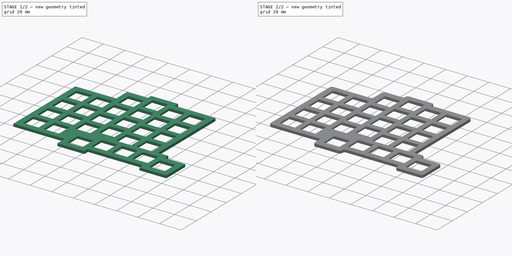
[diagram: build sequence overview — one tinted view per stage of 2, left to right]
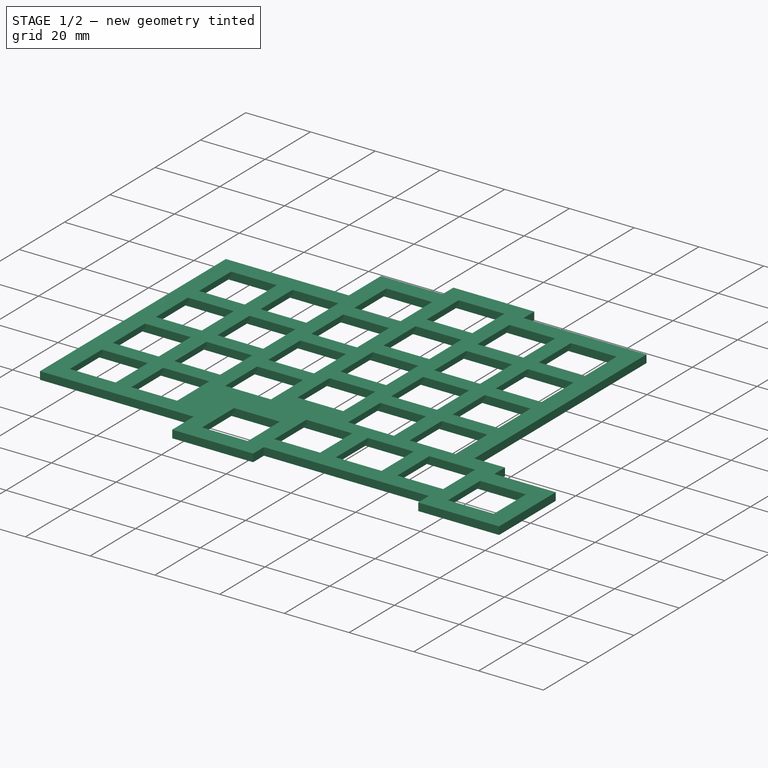
[diagram: stage 1 of 2 — iso view after this stage's code; geometry added in this stage tinted green]
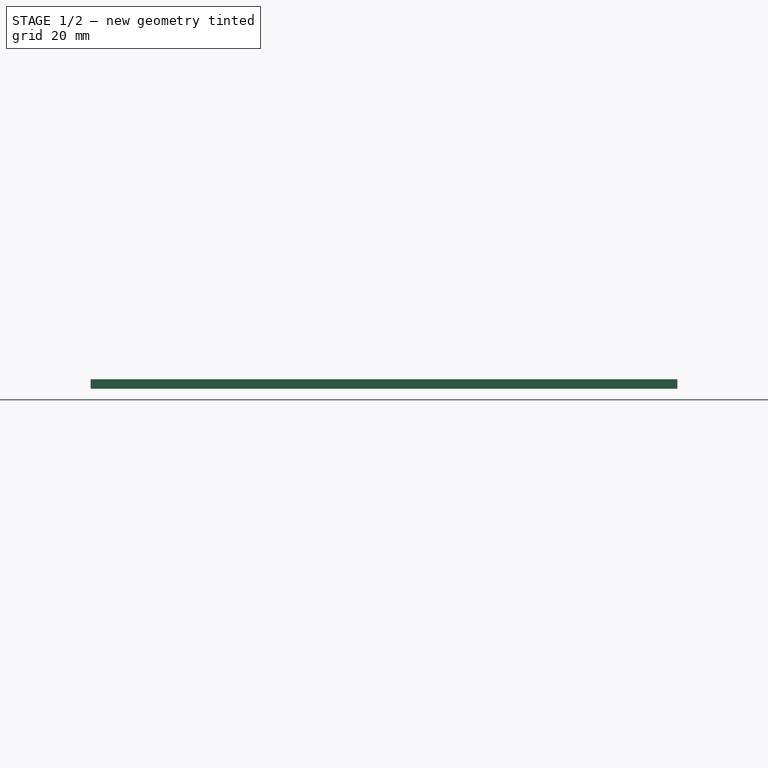
[diagram: stage 1 of 2 — front view after this stage's code; geometry added in this stage tinted green]
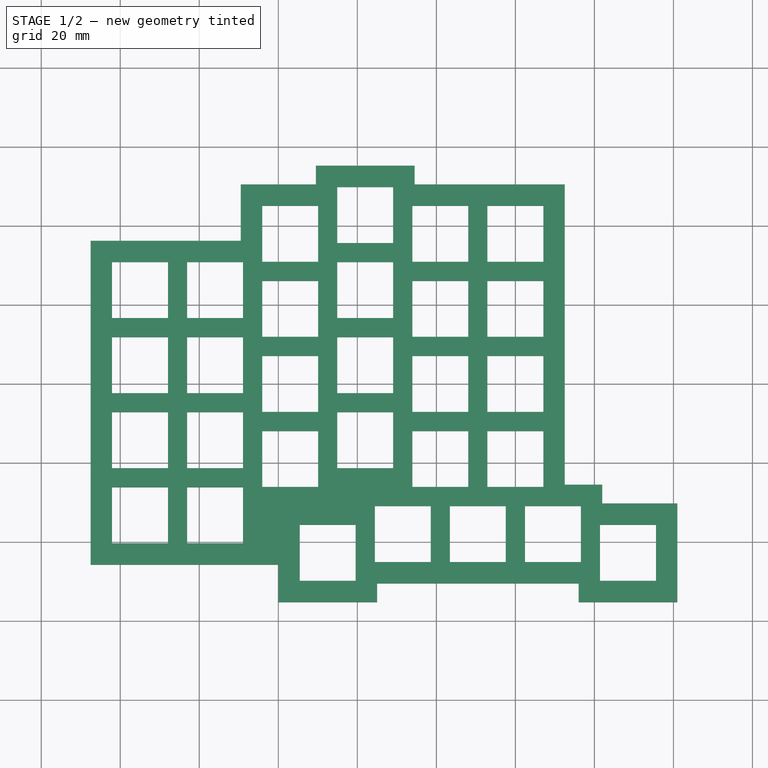
[diagram: stage 1 of 2 — top view after this stage's code; geometry added in this stage tinted green]
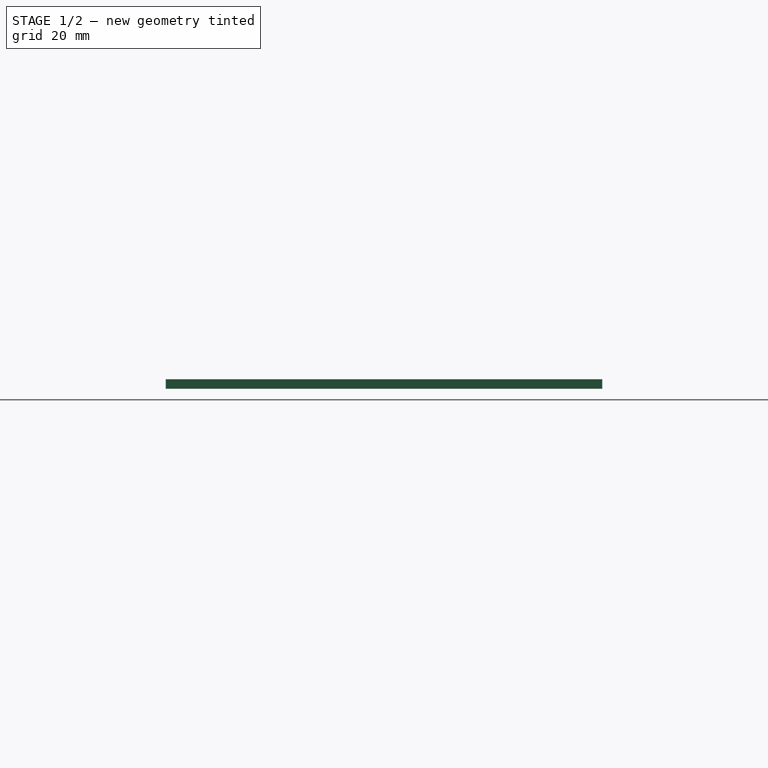
[diagram: stage 1 of 2 — right view after this stage's code; geometry added in this stage tinted green]
FCSTD DOCUMENT  (FreeCAD 0.20R)
Label: plate
License: All rights reserved
LicenseURL: http://en.wikipedia.org/wiki/All_rights_reserved
objects: Sketcher::SketchObject×2, Spreadsheet::Sheet×1, PartDesign::Pad×1, PartDesign::Pocket×1, PartDesign::Fillet×1, PartDesign::Chamfer×1, PartDesign::Body×1
note: 11 computed .brp shape members not serialized (recipe doc carries the construction recipe); baked Part::Feature solids carry a one-line shape summary decoded from their .brp

FEATURE [Sketcher::SketchObject] Sketch
  FullyConstrained = true
  MapMode = 5
  Support = -> [XY_Plane]
  expr: Constraints[10] = Spreadsheet.sw_wi
  expr: Constraints[11] = Spreadsheet.sw_he
  expr: Constraints[23] = Spreadsheet.pl_spacing
  expr: Constraints[343] = Spreadsheet.pl_spacing
  expr: Constraints[344] = Spreadsheet.pl_spacing
  expr: Constraints[345] = Spreadsheet.pl_spacing
  expr: Constraints[346] = Spreadsheet.pl_spacing
  expr: Constraints[347] = Spreadsheet.pl_spacing
  expr: Constraints[348] = Spreadsheet.pl_sp4
  expr: Constraints[349] = Spreadsheet.pl_sp4
  expr: Constraints[350] = Spreadsheet.pl_sp2
  expr: Constraints[351] = Spreadsheet.pl_spacing
  expr: Constraints[352] = Spreadsheet.pl_spacing
  expr: Constraints[353] = Spreadsheet.pl_spacing
  expr: Constraints[354] = Spreadsheet.pl_spacing
  expr: Constraints[355] = Spreadsheet.pl_spacing
  expr: Constraints[356] = Spreadsheet.pl_spacing
  expr: Constraints[357] = Spreadsheet.pl_spacing
  expr: Constraints[358] = Spreadsheet.pl_spacing
  expr: Constraints[359] = Spreadsheet.pl_spacing
  expr: Constraints[360] = Spreadsheet.pl_spacing
  expr: Constraints[361] = Spreadsheet.pl_spacing
  expr: Constraints[362] = Spreadsheet.pl_spacing
  expr: Constraints[363] = Spreadsheet.pl_spacing
  expr: Constraints[364] = Spreadsheet.pl_spacing
  expr: Constraints[365] = Spreadsheet.pl_spacing
  expr: Constraints[366] = Spreadsheet.pl_spacing
  expr: Constraints[367] = Spreadsheet.pl_spacing
  expr: Constraints[368] = Spreadsheet.pl_spacing
  expr: Constraints[369] = Spreadsheet.pl_spacing
  expr: Constraints[370] = Spreadsheet.pl_spacing
  expr: Constraints[373] = Spreadsheet.pl_sp4
  expr: Constraints[375] = Spreadsheet.pl_sp4
  expr: Constraints[37] = Spreadsheet.pl_spacing
  expr: Constraints[416] = Spreadsheet.pl_edge
  expr: Constraints[417] = Spreadsheet.pl_edge
  expr: Constraints[418] = Spreadsheet.pl_edge
  expr: Constraints[419] = Spreadsheet.pl_edge
  expr: Constraints[420] = Spreadsheet.pl_edge
  expr: Constraints[421] = Spreadsheet.pl_edge
  expr: Constraints[422] = Spreadsheet.pl_edge
  expr: Constraints[423] = Spreadsheet.pl_edge
  expr: Constraints[424] = Spreadsheet.pl_edge
  expr: Constraints[425] = Spreadsheet.pl_edge
  expr: Constraints[426] = Spreadsheet.pl_edge
  expr: Constraints[427] = Spreadsheet.pl_edge
  expr: Constraints[428] = Spreadsheet.pl_edge
  expr: Constraints[429] = Spreadsheet.pl_edge
  expr: Constraints[430] = Spreadsheet.pl_edge
  expr: Constraints[431] = Spreadsheet.pl_edge
  expr: Constraints[432] = Spreadsheet.pl_edge
  expr: Constraints[433] = Spreadsheet.pl_edge
  expr: Constraints[434] = Spreadsheet.pl_edge
  expr: Constraints[435] = Spreadsheet.pl_edge
  expr: Constraints[50] = Spreadsheet.pl_spacing
  sketch-geometry (165):
    g0: LineSegment StartX=-7.075 StartY=7.075 StartZ=0 EndX=-7.075 EndY=-7.075 EndZ=0
    g1: LineSegment StartX=-7.075 StartY=-7.075 StartZ=0 EndX=7.075 EndY=-7.075 EndZ=0
    g2: LineSegment StartX=7.075 StartY=-7.075 StartZ=0 EndX=7.075 EndY=7.075 EndZ=0
    g3: LineSegment StartX=7.075 StartY=7.075 StartZ=0 EndX=-7.075 EndY=7.075 EndZ=0
    g4: GeomPoint X=0 Y=0 Z=0
    g5: LineSegment StartX=-7.075 StartY=-11.925 StartZ=0 EndX=-7.075 EndY=-26.075 EndZ=0
    g6: LineSegment StartX=-7.075 StartY=-26.075 StartZ=0 EndX=7.075 EndY=-26.075 EndZ=0
    g7: LineSegment StartX=7.075 StartY=-26.075 StartZ=0 EndX=7.075 EndY=-11.925 EndZ=0
    g8: LineSegment StartX=7.075 StartY=-11.925 StartZ=0 EndX=-7.075 EndY=-11.925 EndZ=0
    g9: GeomPoint X=0 Y=-19 Z=0
    g10: LineSegment StartX=-7.075 StartY=26.075 StartZ=0 EndX=-7.075 EndY=11.925 EndZ=0
    g11: LineSegment StartX=-7.075 StartY=11.925 StartZ=0 EndX=7.075 EndY=11.925 EndZ=0
    g12: LineSegment StartX=7.075 StartY=11.925 StartZ=0 EndX=7.075 EndY=26.075 EndZ=0
    g13: LineSegment StartX=7.075 StartY=26.075 StartZ=0 EndX=-7.075 EndY=26.075 EndZ=0
    g14: GeomPoint X=0 Y=19 Z=0
    g15: LineSegment StartX=-7.075 StartY=45.075 StartZ=0 EndX=-7.075 EndY=30.925 EndZ=0
    g16: LineSegment StartX=-7.075 StartY=30.925 StartZ=0 EndX=7.075 EndY=30.925 EndZ=0
    g17: LineSegment StartX=7.075 StartY=30.925 StartZ=0 EndX=7.075 EndY=45.075 EndZ=0
    g18: LineSegment StartX=7.075 StartY=45.075 StartZ=0 EndX=-7.075 EndY=45.075 EndZ=0
    g19: GeomPoint X=0 Y=38 Z=0
    g20: LineSegment StartX=-26.075 StartY=45.075 StartZ=0 EndX=-26.075 EndY=30.925 EndZ=0
    g21: LineSegment StartX=-26.075 StartY=30.925 StartZ=0 EndX=-11.925 EndY=30.925 EndZ=0
    g22: LineSegment StartX=-11.925 StartY=30.925 StartZ=0 EndX=-11.925 EndY=45.075 EndZ=0
    g23: LineSegment StartX=-11.925 StartY=45.075 StartZ=0 EndX=-26.075 EndY=45.075 EndZ=0
    g24: GeomPoint X=-19 Y=38 Z=0
    g25: LineSegment StartX=-26.075 StartY=26.075 StartZ=0 EndX=-26.075 EndY=11.925 EndZ=0
    g26: LineSegment StartX=-26.075 StartY=11.925 StartZ=0 EndX=-11.925 EndY=11.925 EndZ=0
    g27: LineSegment StartX=-11.925 StartY=11.925 StartZ=0 EndX=-11.925 EndY=26.075 EndZ=0
    g28: LineSegment StartX=-11.925 StartY=26.075 StartZ=0 EndX=-26.075 EndY=26.075 EndZ=0
    g29: GeomPoint X=-19 Y=19 Z=0
    g30: LineSegment StartX=-26.075 StartY=7.075 StartZ=0 EndX=-26.075 EndY=-7.075 EndZ=0
    g31: LineSegment StartX=-26.075 StartY=-7.075 StartZ=0 EndX=-11.925 EndY=-7.075 EndZ=0
    g32: LineSegment StartX=-11.925 StartY=-7.075 StartZ=0 EndX=-11.925 EndY=7.075 EndZ=0
    g33: LineSegment StartX=-11.925 StartY=7.075 StartZ=0 EndX=-26.075 EndY=7.075 EndZ=0
    g34: GeomPoint X=-19 Y=0 Z=0
    g35: LineSegment StartX=-26.075 StartY=-11.925 StartZ=0 EndX=-26.075 EndY=-26.075 EndZ=0
    g36: LineSegment StartX=-26.075 StartY=-26.075 StartZ=0 EndX=-11.925 EndY=-26.075 EndZ=0
    g37: LineSegment StartX=-11.925 StartY=-26.075 StartZ=0 EndX=-11.925 EndY=-11.925 EndZ=0
    g38: LineSegment StartX=-11.925 StartY=-11.925 StartZ=0 EndX=-26.075 EndY=-11.925 EndZ=0
    g39: GeomPoint X=-19 Y=-19 Z=0
    g40: LineSegment StartX=-45.075 StartY=49.825 StartZ=0 EndX=-45.075 EndY=35.675 EndZ=0
    g41: LineSegment StartX=-45.075 StartY=35.675 StartZ=0 EndX=-30.925 EndY=35.675 EndZ=0
    g42: LineSegment StartX=-30.925 StartY=35.675 StartZ=0 EndX=-30.925 EndY=49.825 EndZ=0
    g43: LineSegment StartX=-30.925 StartY=49.825 StartZ=0 EndX=-45.075 EndY=49.825 EndZ=0
    g44: GeomPoint X=-38 Y=42.75 Z=0
    g45: LineSegment StartX=-45.075 StartY=30.825 StartZ=0 EndX=-45.075 EndY=16.675 EndZ=0
    g46: LineSegment StartX=-45.075 StartY=16.675 StartZ=0 EndX=-30.925 EndY=16.675 EndZ=0
    g47: LineSegment StartX=-30.925 StartY=16.675 StartZ=0 EndX=-30.925 EndY=30.825 EndZ=0
    g48: LineSegment StartX=-30.925 StartY=30.825 StartZ=0 EndX=-45.075 EndY=30.825 EndZ=0
    g49: GeomPoint X=-38 Y=23.75 Z=0
    g50: LineSegment StartX=-45.075 StartY=11.825 StartZ=0 EndX=-45.075 EndY=-2.325 EndZ=0
    g51: LineSegment StartX=-45.075 StartY=-2.325 StartZ=0 EndX=-30.925 EndY=-2.325 EndZ=0
    g52: LineSegment StartX=-30.925 StartY=-2.325 StartZ=0 EndX=-30.925 EndY=11.825 EndZ=0
    g53: LineSegment StartX=-30.925 StartY=11.825 StartZ=0 EndX=-45.075 EndY=11.825 EndZ=0
    g54: GeomPoint X=-38 Y=4.75 Z=0
    g55: LineSegment StartX=-45.075 StartY=-7.175 StartZ=0 EndX=-45.075 EndY=-21.325 EndZ=0
    g56: LineSegment StartX=-45.075 StartY=-21.325 StartZ=0 EndX=-30.925 EndY=-21.325 EndZ=0
    g57: LineSegment StartX=-30.925 StartY=-21.325 StartZ=0 EndX=-30.925 EndY=-7.175 EndZ=0
    g58: LineSegment StartX=-30.925 StartY=-7.175 StartZ=0 EndX=-45.075 EndY=-7.175 EndZ=0
    g59: GeomPoint X=-38 Y=-14.25 Z=0
    g60: LineSegment StartX=-64.075 StartY=45.075 StartZ=0 EndX=-64.075 EndY=30.925 EndZ=0
    g61: LineSegment StartX=-64.075 StartY=30.925 StartZ=0 EndX=-49.925 EndY=30.925 EndZ=0
    g62: LineSegment StartX=-49.925 StartY=30.925 StartZ=0 EndX=-49.925 EndY=45.075 EndZ=0
    g63: LineSegment StartX=-49.925 StartY=45.075 StartZ=0 EndX=-64.075 EndY=45.075 EndZ=0
    g64: GeomPoint X=-57 Y=38 Z=0
    g65: LineSegment StartX=-64.075 StartY=26.075 StartZ=0 EndX=-64.075 EndY=11.925 EndZ=0
    g66: LineSegment StartX=-64.075 StartY=11.925 StartZ=0 EndX=-49.925 EndY=11.925 EndZ=0
    g67: LineSegment StartX=-49.925 StartY=11.925 StartZ=0 EndX=-49.925 EndY=26.075 EndZ=0
    g68: LineSegment StartX=-49.925 StartY=26.075 StartZ=0 EndX=-64.075 EndY=26.075 EndZ=0
    g69: GeomPoint X=-57 Y=19 Z=0
    g70: LineSegment StartX=-64.075 StartY=7.075 StartZ=0 EndX=-64.075 EndY=-7.075 EndZ=0
    g71: LineSegment StartX=-64.075 StartY=-7.075 StartZ=0 EndX=-49.925 EndY=-7.075 EndZ=0
    g72: LineSegment StartX=-49.925 StartY=-7.075 StartZ=0 EndX=-49.925 EndY=7.075 EndZ=0
    g73: LineSegment StartX=-49.925 StartY=7.075 StartZ=0 EndX=-64.075 EndY=7.075 EndZ=0
    g74: GeomPoint X=-57 Y=0 Z=0
    g75: LineSegment StartX=-64.075 StartY=-11.925 StartZ=0 EndX=-64.075 EndY=-26.075 EndZ=0
    g76: LineSegment StartX=-64.075 StartY=-26.075 StartZ=0 EndX=-49.925 EndY=-26.075 EndZ=0
    g77: LineSegment StartX=-49.925 StartY=-26.075 StartZ=0 EndX=-49.925 EndY=-11.925 EndZ=0
    g78: LineSegment StartX=-49.925 StartY=-11.925 StartZ=0 EndX=-64.075 EndY=-11.925 EndZ=0
    g79: GeomPoint X=-57 Y=-19 Z=0
    g80: LineSegment StartX=-83.075 StartY=30.825 StartZ=0 EndX=-83.075 EndY=16.675 EndZ=0
    g81: LineSegment StartX=-83.075 StartY=16.675 StartZ=0 EndX=-68.925 EndY=16.675 EndZ=0
    g82: LineSegment StartX=-68.925 StartY=16.675 StartZ=0 EndX=-68.925 EndY=30.825 EndZ=0
    g83: LineSegment StartX=-68.925 StartY=30.825 StartZ=0 EndX=-83.075 EndY=30.825 EndZ=0
    g84: GeomPoint X=-76 Y=23.75 Z=0
    g85: LineSegment StartX=-102.075 StartY=30.825 StartZ=0 EndX=-102.075 EndY=16.675 EndZ=0
    g86: LineSegment StartX=-102.075 StartY=16.675 StartZ=0 EndX=-87.925 EndY=16.675 EndZ=0
    g87: LineSegment StartX=-87.925 StartY=16.675 StartZ=0 EndX=-87.925 EndY=30.825 EndZ=0
    g88: LineSegment StartX=-87.925 StartY=30.825 StartZ=0 EndX=-102.075 EndY=30.825 EndZ=0
    g89: GeomPoint X=-95 Y=23.75 Z=0
    g90: LineSegment StartX=-83.075 StartY=11.825 StartZ=0 EndX=-83.075 EndY=-2.325 EndZ=0
    g91: LineSegment StartX=-83.075 StartY=-2.325 StartZ=0 EndX=-68.925 EndY=-2.325 EndZ=0
    g92: LineSegment StartX=-68.925 StartY=-2.325 StartZ=0 EndX=-68.925 EndY=11.825 EndZ=0
    g93: LineSegment StartX=-68.925 StartY=11.825 StartZ=0 EndX=-83.075 EndY=11.825 EndZ=0
    g94: GeomPoint X=-76 Y=4.75 Z=0
    g95: LineSegment StartX=-83.075 StartY=-7.175 StartZ=0 EndX=-83.075 EndY=-21.325 EndZ=0
    g96: LineSegment StartX=-83.075 StartY=-21.325 StartZ=0 EndX=-68.925 EndY=-21.325 EndZ=0
    g97: LineSegment StartX=-68.925 StartY=-21.325 StartZ=0 EndX=-68.925 EndY=-7.175 EndZ=0
    g98: LineSegment StartX=-68.925 StartY=-7.175 StartZ=0 EndX=-83.075 EndY=-7.175 EndZ=0
    g99: GeomPoint X=-76 Y=-14.25 Z=0
    g100: LineSegment StartX=-83.075 StartY=-26.175 StartZ=0 EndX=-83.075 EndY=-40.325 EndZ=0
    g101: LineSegment StartX=-83.075 StartY=-40.325 StartZ=0 EndX=-68.925 EndY=-40.325 EndZ=0
    g102: LineSegment StartX=-68.925 StartY=-40.325 StartZ=0 EndX=-68.925 EndY=-26.175 EndZ=0
    g103: LineSegment StartX=-68.925 StartY=-26.175 StartZ=0 EndX=-83.075 EndY=-26.175 EndZ=0
    g104: GeomPoint X=-76 Y=-33.25 Z=0
    g105: LineSegment StartX=-102.075 StartY=11.825 StartZ=0 EndX=-102.075 EndY=-2.325 EndZ=0
    g106: LineSegment StartX=-102.075 StartY=-2.325 StartZ=0 EndX=-87.925 EndY=-2.325 EndZ=0
    g107: LineSegment StartX=-87.925 StartY=-2.325 StartZ=0 EndX=-87.925 EndY=11.825 EndZ=0
    g108: LineSegment StartX=-87.925 StartY=11.825 StartZ=0 EndX=-102.075 EndY=11.825 EndZ=0
    g109: GeomPoint X=-95 Y=4.75 Z=0
    g110: LineSegment StartX=-102.075 StartY=-7.175 StartZ=0 EndX=-102.075 EndY=-21.325 EndZ=0
    g111: LineSegment StartX=-102.075 StartY=-21.325 StartZ=0 EndX=-87.925 EndY=-21.325 EndZ=0
    g112: LineSegment StartX=-87.925 StartY=-21.325 StartZ=0 EndX=-87.925 EndY=-7.175 EndZ=0
    g113: LineSegment StartX=-87.925 StartY=-7.175 StartZ=0 EndX=-102.075 EndY=-7.175 EndZ=0
    g114: GeomPoint X=-95 Y=-14.25 Z=0
    g115: LineSegment StartX=-102.075 StartY=-26.175 StartZ=0 EndX=-102.075 EndY=-40.325 EndZ=0
    g116: LineSegment StartX=-102.075 StartY=-40.325 StartZ=0 EndX=-87.925 EndY=-40.325 EndZ=0
    g117: LineSegment StartX=-87.925 StartY=-40.325 StartZ=0 EndX=-87.925 EndY=-26.175 EndZ=0
    g118: LineSegment StartX=-87.925 StartY=-26.175 StartZ=0 EndX=-102.075 EndY=-26.175 EndZ=0
    g119: GeomPoint X=-95 Y=-33.25 Z=0
    g120: LineSegment StartX=-16.575 StartY=-30.925 StartZ=0 EndX=-16.575 EndY=-45.075 EndZ=0
    g121: LineSegment StartX=-16.575 StartY=-45.075 StartZ=0 EndX=-2.425 EndY=-45.075 EndZ=0
    g122: LineSegment StartX=-2.425 StartY=-45.075 StartZ=0 EndX=-2.425 EndY=-30.925 EndZ=0
    g123: LineSegment StartX=-2.425 StartY=-30.925 StartZ=0 EndX=-16.575 EndY=-30.925 EndZ=0
    g124: GeomPoint X=-9.5 Y=-38 Z=0
    g125: LineSegment StartX=2.425 StartY=-30.925 StartZ=0 EndX=2.425 EndY=-45.075 EndZ=0
    g126: LineSegment StartX=2.425 StartY=-45.075 StartZ=0 EndX=16.575 EndY=-45.075 EndZ=0
    g127: LineSegment StartX=16.575 StartY=-45.075 StartZ=0 EndX=16.575 EndY=-30.925 EndZ=0
    g128: LineSegment StartX=16.575 StartY=-30.925 StartZ=0 EndX=2.425 EndY=-30.925 EndZ=0
    g129: GeomPoint X=9.5 Y=-38 Z=0
    g130: LineSegment StartX=-35.575 StartY=-30.925 StartZ=0 EndX=-35.575 EndY=-45.075 EndZ=0
    g131: LineSegment StartX=-35.575 StartY=-45.075 StartZ=0 EndX=-21.425 EndY=-45.075 EndZ=0
    g132: LineSegment StartX=-21.425 StartY=-45.075 StartZ=0 EndX=-21.425 EndY=-30.925 EndZ=0
    g133: LineSegment StartX=-21.425 StartY=-30.925 StartZ=0 EndX=-35.575 EndY=-30.925 EndZ=0
    g134: GeomPoint X=-28.5 Y=-38 Z=0
    g135: LineSegment StartX=21.425 StartY=-35.675 StartZ=0 EndX=21.425 EndY=-49.825 EndZ=0
    g136: LineSegment StartX=21.425 StartY=-49.825 StartZ=0 EndX=35.575 EndY=-49.825 EndZ=0
    g137: LineSegment StartX=35.575 StartY=-49.825 StartZ=0 EndX=35.575 EndY=-35.675 EndZ=0
    g138: LineSegment StartX=35.575 StartY=-35.675 StartZ=0 EndX=21.425 EndY=-35.675 EndZ=0
    g139: GeomPoint X=28.5 Y=-42.75 Z=0
    g140: LineSegment StartX=-54.575 StartY=-35.675 StartZ=0 EndX=-54.575 EndY=-49.825 EndZ=0
    g141: LineSegment StartX=-54.575 StartY=-49.825 StartZ=0 EndX=-40.425 EndY=-49.825 EndZ=0
    g142: LineSegment StartX=-40.425 StartY=-49.825 StartZ=0 EndX=-40.425 EndY=-35.675 EndZ=0
    g143: LineSegment StartX=-40.425 StartY=-35.675 StartZ=0 EndX=-54.575 EndY=-35.675 EndZ=0
    g144: GeomPoint X=-47.5 Y=-42.75 Z=0
    g145: LineSegment StartX=12.5 StartY=50.5 StartZ=0 EndX=12.5 EndY=-25.5 EndZ=0
    g146: LineSegment StartX=12.5 StartY=-25.5 StartZ=0 EndX=22 EndY=-25.5 EndZ=0
    g147: LineSegment StartX=22 StartY=-25.5 StartZ=0 EndX=22 EndY=-30.25 EndZ=0
    g148: LineSegment StartX=22 StartY=-30.25 StartZ=0 EndX=41 EndY=-30.25 EndZ=0
    g149: LineSegment StartX=41 StartY=-30.25 StartZ=0 EndX=41 EndY=-55.25 EndZ=0
    g150: LineSegment StartX=41 StartY=-55.25 StartZ=0 EndX=16 EndY=-55.25 EndZ=0
    g151: LineSegment StartX=16 StartY=-55.25 StartZ=0 EndX=16 EndY=-50.5 EndZ=0
    g152: LineSegment StartX=16 StartY=-50.5 StartZ=0 EndX=-35 EndY=-50.5 EndZ=0
    g153: LineSegment StartX=-35 StartY=-50.5 StartZ=0 EndX=-35 EndY=-55.25 EndZ=0
    g154: LineSegment StartX=-35 StartY=-55.25 StartZ=0 EndX=-60 EndY=-55.25 EndZ=0
    g155: LineSegment StartX=-60 StartY=-55.25 StartZ=0 EndX=-60 EndY=-45.75 EndZ=0
    g156: LineSegment StartX=-60 StartY=-45.75 StartZ=0 EndX=-107.5 EndY=-45.75 EndZ=0
    g157: LineSegment StartX=-107.5 StartY=-45.75 StartZ=0 EndX=-107.5 EndY=36.25 EndZ=0
    g158: LineSegment StartX=-107.5 StartY=36.25 StartZ=0 EndX=-69.5 EndY=36.25 EndZ=0
    g159: LineSegment StartX=-69.5 StartY=36.25 StartZ=0 EndX=-69.5 EndY=50.5 EndZ=0
    g160: LineSegment StartX=-69.5 StartY=50.5 StartZ=0 EndX=-50.5 EndY=50.5 EndZ=0
    g161: LineSegment StartX=-50.5 StartY=50.5 StartZ=0 EndX=-50.5 EndY=55.25 EndZ=0
    g162: LineSegment StartX=-50.5 StartY=55.25 StartZ=0 EndX=-25.5 EndY=55.25 EndZ=0
    g163: LineSegment StartX=-25.5 StartY=55.25 StartZ=0 EndX=-25.5 EndY=50.5 EndZ=0
    g164: LineSegment StartX=-25.5 StartY=50.5 StartZ=0 EndX=12.5 EndY=50.5 EndZ=0
  constraints (436):
    c: Coincident(g0,g1)
    c: Coincident(g1,g2)
    c: Coincident(g2,g3)
    c: Coincident(g3,g0)
    c: Horizontal(g1)
    c: Horizontal(g3)
    c: Vertical(g0)
    c: Vertical(g2)
    c: Symmetric(g1,g0,g4)
    c: Coincident(g4,g-1)
    c: DistanceX(g3,g3) = 14.15
    c: DistanceY(g0,g0) = 14.15
    c: Coincident(g5,g6)
    c: Coincident(g6,g7)
    c: Coincident(g7,g8)
    c: Coincident(g8,g5)
    c: Horizontal(g6)
    c: Horizontal(g8)
    c: Vertical(g5)
    c: Vertical(g7)
    c: Symmetric(g6,g5,g9)
    c: Equal(g3,g8) = 14.15
    c: Equal(g0,g5) = 14.15
    c: DistanceY(g9,g4) = 19
    c: Vertical(g9,g4)
    c: Coincident(g10,g11)
    c: Coincident(g11,g12)
    c: Coincident(g12,g13)
    c: Coincident(g13,g10)
    c: Horizontal(g11)
    c: Horizontal(g13)
    c: Vertical(g10)
    c: Vertical(g12)
    c: Symmetric(g11,g10,g14)
    c: Equal(g3,g13) = 14.15
    c: Equal(g0,g10) = 14.15
    c: Vertical(g4,g14)
    c: DistanceY(g4,g14) = 19
    c: Coincident(g15,g16)
    c: Coincident(g16,g17)
    c: Coincident(g17,g18)
    c: Coincident(g18,g15)
    c: Horizontal(g16)
    c: Horizontal(g18)
    c: Vertical(g15)
    c: Vertical(g17)
    c: Symmetric(g16,g15,g19)
    c: Equal(g3,g18) = 14.15
    c: Equal(g0,g15) = 14.15
    c: Vertical(g19,g4)
    c: DistanceY(g14,g19) = 19
    c: Coincident(g20,g21)
    c: Coincident(g21,g22)
    c: Coincident(g22,g23)
    c: Coincident(g23,g20)
    c: Horizontal(g21)
    c: Horizontal(g23)
    c: Vertical(g20)
    c: Vertical(g22)
    c: Symmetric(g21,g20,g24)
    c: Equal(g3,g23) = 14.15
    c: Equal(g0,g20) = 14.15
    c: Coincident(g25,g26)
    c: Coincident(g26,g27)
    c: Coincident(g27,g28)
    c: Coincident(g28,g25)
    c: Horizontal(g26)
    c: Horizontal(g28)
    c: Vertical(g25)
    c: Vertical(g27)
    c: Symmetric(g26,g25,g29)
    c: Equal(g3,g28) = 14.15
    c: Equal(g0,g25) = 14.15
    c: Coincident(g30,g31)
    c: Coincident(g31,g32)
    c: Coincident(g32,g33)
    c: Coincident(g33,g30)
    c: Horizontal(g31)
    c: Horizontal(g33)
    c: Vertical(g30)
    c: Vertical(g32)
    c: Symmetric(g31,g30,g34)
    c: Equal(g3,g33) = 14.15
    c: Equal(g0,g30) = 14.15
    c: Coincident(g35,g36)
    c: Coincident(g36,g37)
    c: Coincident(g37,g38)
    c: Coincident(g38,g35)
    c: Horizontal(g36)
    c: Horizontal(g38)
    c: Vertical(g35)
    c: Vertical(g37)
    c: Symmetric(g36,g35,g39)
    c: Equal(g3,g38) = 14.15
    c: Equal(g0,g35) = 14.15
    c: Coincident(g40,g41)
    c: Coincident(g41,g42)
    c: Coincident(g42,g43)
    c: Coincident(g43,g40)
    c: Horizontal(g41)
    c: Horizontal(g43)
    c: Vertical(g40)
    c: Vertical(g42)
    c: Symmetric(g41,g40,g44)
    c: Equal(g3,g43) = 14.15
    c: Equal(g0,g40) = 14.15
    c: Coincident(g45,g46)
    c: Coincident(g46,g47)
    c: Coincident(g47,g48)
    c: Coincident(g48,g45)
    c: Horizontal(g46)
    c: Horizontal(g48)
    c: Vertical(g45)
    c: Vertical(g47)
    c: Symmetric(g46,g45,g49)
    c: Equal(g3,g48) = 14.15
    c: Equal(g0,g45) = 14.15
    c: Coincident(g50,g51)
    c: Coincident(g51,g52)
    c: Coincident(g52,g53)
    c: Coincident(g53,g50)
    c: Horizontal(g51)
    c: Horizontal(g53)
    c: Vertical(g50)
    c: Vertical(g52)
    c: Symmetric(g51,g50,g54)
    c: Equal(g3,g53) = 14.15
    c: Equal(g0,g50) = 14.15
    c: Coincident(g55,g56)
    c: Coincident(g56,g57)
    c: Coincident(g57,g58)
    c: Coincident(g58,g55)
    c: Horizontal(g56)
    c: Horizontal(g58)
    c: Vertical(g55)
    c: Vertical(g57)
    c: Symmetric(g56,g55,g59)
    c: Equal(g3,g58) = 14.15
    c: Equal(g0,g55) = 14.15
    c: Coincident(g60,g61)
    c: Coincident(g61,g62)
    c: Coincident(g62,g63)
    c: Coincident(g63,g60)
    c: Horizontal(g61)
    c: Horizontal(g63)
    c: Vertical(g60)
    c: Vertical(g62)
    c: Symmetric(g61,g60,g64)
    c: Equal(g3,g63) = 14.15
    c: Equal(g0,g60) = 14.15
    c: Coincident(g65,g66)
    c: Coincident(g66,g67)
    c: Coincident(g67,g68)
    c: Coincident(g68,g65)
    c: Horizontal(g66)
    c: Horizontal(g68)
    c: Vertical(g65)
    c: Vertical(g67)
    c: Symmetric(g66,g65,g69)
    c: Equal(g3,g68) = 14.15
    c: Equal(g0,g65) = 14.15
    c: Coincident(g70,g71)
    c: Coincident(g71,g72)
    c: Coincident(g72,g73)
    c: Coincident(g73,g70)
    c: Horizontal(g71)
    c: Horizontal(g73)
    c: Vertical(g70)
    c: Vertical(g72)
    c: Symmetric(g71,g70,g74)
    c: Equal(g3,g73) = 14.15
    c: Equal(g0,g70) = 14.15
    c: Coincident(g75,g76)
    c: Coincident(g76,g77)
    c: Coincident(g77,g78)
    c: Coincident(g78,g75)
    c: Horizontal(g76)
    c: Horizontal(g78)
    c: Vertical(g75)
    c: Vertical(g77)
    c: Symmetric(g76,g75,g79)
    c: Equal(g3,g78) = 14.15
    c: Equal(g0,g75) = 14.15
    c: Coincident(g80,g81)
    c: Coincident(g81,g82)
    c: Coincident(g82,g83)
    c: Coincident(g83,g80)
    c: Horizontal(g81)
    c: Horizontal(g83)
    c: Vertical(g80)
    c: Vertical(g82)
    c: Symmetric(g81,g80,g84)
    c: Equal(g3,g83) = 14.15
    c: Equal(g0,g80) = 14.15
    c: Coincident(g85,g86)
    c: Coincident(g86,g87)
    c: Coincident(g87,g88)
    c: Coincident(g88,g85)
    c: Horizontal(g86)
    c: Horizontal(g88)
    c: Vertical(g85)
    c: Vertical(g87)
    c: Symmetric(g86,g85,g89)
    c: Equal(g3,g88) = 14.15
    c: Equal(g0,g85) = 14.15
    c: Coincident(g90,g91)
    c: Coincident(g91,g92)
    c: Coincident(g92,g93)
    c: Coincident(g93,g90)
    c: Horizontal(g91)
    c: Horizontal(g93)
    c: Vertical(g90)
    c: Vertical(g92)
    c: Symmetric(g91,g90,g94)
    c: Equal(g3,g93) = 14.15
    c: Equal(g0,g90) = 14.15
    c: Coincident(g95,g96)
    c: Coincident(g96,g97)
    c: Coincident(g97,g98)
    c: Coincident(g98,g95)
    c: Horizontal(g96)
    c: Horizontal(g98)
    c: Vertical(g95)
    c: Vertical(g97)
    c: Symmetric(g96,g95,g99)
    c: Equal(g3,g98) = 14.15
    c: Equal(g0,g95) = 14.15
    c: Coincident(g100,g101)
    c: Coincident(g101,g102)
    c: Coincident(g102,g103)
    c: Coincident(g103,g100)
    c: Horizontal(g101)
    c: Horizontal(g103)
    c: Vertical(g100)
    c: Vertical(g102)
    c: Symmetric(g101,g100,g104)
    c: Equal(g3,g103) = 14.15
    c: Equal(g0,g100) = 14.15
    c: Coincident(g105,g106)
    c: Coincident(g106,g107)
    c: Coincident(g107,g108)
    c: Coincident(g108,g105)
    c: Horizontal(g106)
    c: Horizontal(g108)
    c: Vertical(g105)
    c: Vertical(g107)
    c: Symmetric(g106,g105,g109)
    c: Equal(g3,g108) = 14.15
    c: Equal(g0,g105) = 14.15
    c: Coincident(g110,g111)
    c: Coincident(g111,g112)
    c: Coincident(g112,g113)
    c: Coincident(g113,g110)
    c: Horizontal(g111)
    c: Horizontal(g113)
    c: Vertical(g110)
    c: Vertical(g112)
    c: Symmetric(g111,g110,g114)
    c: Equal(g3,g113) = 14.15
    c: Equal(g0,g110) = 14.15
    c: Coincident(g115,g116)
    c: Coincident(g116,g117)
    c: Coincident(g117,g118)
    c: Coincident(g118,g115)
    c: Horizontal(g116)
    c: Horizontal(g118)
    c: Vertical(g115)
    c: Vertical(g117)
    c: Symmetric(g116,g115,g119)
    c: Equal(g3,g118) = 14.15
    c: Equal(g0,g115) = 14.15
    c: Coincident(g120,g121)
    c: Coincident(g121,g122)
    c: Coincident(g122,g123)
    c: Coincident(g123,g120)
    c: Horizontal(g121)
    c: Horizontal(g123)
    c: Vertical(g120)
    c: Vertical(g122)
    c: Symmetric(g121,g120,g124)
    c: Equal(g3,g123) = 14.15
    c: Equal(g0,g120) = 14.15
    c: Coincident(g125,g126)
    c: Coincident(g126,g127)
    c: Coincident(g127,g128)
    c: Coincident(g128,g125)
    c: Horizontal(g126)
    c: Horizontal(g128)
    c: Vertical(g125)
    c: Vertical(g127)
    c: Symmetric(g126,g125,g129)
    c: Equal(g3,g128) = 14.15
    c: Equal(g0,g125) = 14.15
    c: Coincident(g130,g131)
    c: Coincident(g131,g132)
    c: Coincident(g132,g133)
    c: Coincident(g133,g130)
    c: Horizontal(g131)
    c: Horizontal(g133)
    c: Vertical(g130)
    c: Vertical(g132)
    c: Symmetric(g131,g130,g134)
    c: Equal(g3,g133) = 14.15
    c: Equal(g0,g130) = 14.15
    c: Coincident(g135,g136)
    c: Coincident(g136,g137)
    c: Coincident(g137,g138)
    c: Coincident(g138,g135)
    c: Horizontal(g136)
    c: Horizontal(g138)
    c: Vertical(g135)
    c: Vertical(g137)
    c: Symmetric(g136,g135,g139)
    c: Equal(g3,g138) = 14.15
    c: Equal(g0,g135) = 14.15
    c: Coincident(g140,g141)
    c: Coincident(g141,g142)
    c: Coincident(g142,g143)
    c: Coincident(g143,g140)
    c: Horizontal(g141)
    c: Horizontal(g143)
    c: Vertical(g140)
    c: Vertical(g142)
    c: Symmetric(g141,g140,g144)
    c: Equal(g3,g143) = 14.15
    c: Equal(g0,g140) = 14.15
    c: Vertical(g39,g34)
    c: Vertical(g34,g29)
    c: Vertical(g29,g24)
    c: Vertical(g59,g54)
    c: Vertical(g54,g49)
    c: Vertical(g49,g44)
    c: Vertical(g79,g74)
    c: Vertical(g74,g69)
    c: Vertical(g69,g64)
    c: Vertical(g104,g99)
    c: Vertical(g99,g94)
    c: Vertical(g94,g84)
    c: Vertical(g119,g114)
    c: Vertical(g114,g109)
    c: Vertical(g109,g89)
    c: Horizontal(g134,g124)
    c: Horizontal(g124,g129)
    c: DistanceY(g129,g9) = 19
    c: DistanceX(g129,g139) = 19
    c: DistanceX(g124,g129) = 19
    c: DistanceX(g134,g124) = 19
    c: DistanceX(g144,g134) = 19
    c: DistanceY(g139,g129) = 4.75
    c: DistanceY(g144,g134) = 4.75
    c: DistanceX(g9,g129) = 9.5
    c: DistanceY(g39,g34) = 19
    c: DistanceY(g34,g29) = 19
    c: DistanceY(g29,g24) = 19
    c: DistanceY(g59,g54) = 19
    c: DistanceY(g54,g49) = 19
    c: DistanceY(g49,g44) = 19
    c: DistanceY(g79,g74) = 19
    c: DistanceY(g74,g69) = 19
    c: DistanceY(g69,g64) = 19
    c: DistanceY(g104,g99) = 19
    c: DistanceY(g99,g94) = 19
    c: DistanceY(g94,g84) = 19
    c: DistanceY(g119,g114) = 19
    c: DistanceY(g114,g109) = 19
    c: DistanceY(g109,g89) = 19
    c: DistanceX(g34,g4) = 19
    c: DistanceX(g54,g34) = 19
    c: DistanceX(g74,g54) = 19
    c: DistanceX(g99,g74) = 19
    c: DistanceX(g114,g99) = 19
    c: Horizontal(g34,g4)
    c: Horizontal(g74,g34)
    c: DistanceY(g34,g54) = 4.75
    c: Horizontal(g114,g99)
    c: DistanceY(g74,g94) = 4.75
    c: Vertical(g145)
    c: Coincident(g145,g146)
    c: Horizontal(g146)
    c: Coincident(g146,g147)
    c: Vertical(g147)
    c: Coincident(g147,g148)
    c: Horizontal(g148)
    c: Coincident(g148,g149)
    c: Vertical(g149)
    c: Coincident(g149,g150)
    c: Horizontal(g150)
    c: Coincident(g150,g151)
    c: Vertical(g151)
    c: Coincident(g151,g152)
    c: Horizontal(g152)
    c: Coincident(g152,g153)
    c: Vertical(g153)
    c: Coincident(g153,g154)
    c: Horizontal(g154)
    c: Coincident(g154,g155)
    c: Vertical(g155)
    c: Coincident(g155,g156)
    c: Horizontal(g156)
    c: Coincident(g156,g157)
    c: Vertical(g157)
    c: Coincident(g157,g158)
    c: Horizontal(g158)
    c: Coincident(g158,g159)
    c: Vertical(g159)
    c: Coincident(g159,g160)
    c: Horizontal(g160)
    c: Coincident(g160,g161)
    c: Vertical(g161)
    c: Coincident(g161,g162)
    c: Horizontal(g162)
    c: Coincident(g162,g163)
    c: Vertical(g163)
    c: Coincident(g163,g164)
    c: Coincident(g164,g145)
    c: Horizontal(g164)
    c: DistanceX(g19,g145) = 12.5
    c: DistanceX(g44,g162) = 12.5
    c: DistanceX(g161,g44) = 12.5
    c: DistanceX(g159,g64) = 12.5
    c: DistanceX(g157,g89) = 12.5
    c: DistanceX(g154,g144) = 12.5
    c: DistanceX(g144,g153) = 12.5
    c: DistanceX(g150,g139) = 12.5
    c: DistanceX(g139,g149) = 12.5
    c: DistanceX(g129,g146) = 12.5
    c: DistanceY(g19,g145) = 12.5
    c: DistanceY(g44,g162) = 12.5
    c: DistanceY(g64,g159) = 12.5
    c: DistanceY(g89,g157) = 12.5
    c: DistanceY(g156,g119) = 12.5
    c: DistanceY(g154,g144) = 12.5
    c: DistanceY(g152,g134) = 12.5
    c: DistanceY(g149,g139) = 12.5
    c: DistanceY(g139,g148) = 12.5
    c: DistanceY(g129,g146) = 12.5
FEATURE [Spreadsheet::Sheet] Spreadsheet
  cells = B2=Switch Opening; B3=width; C3(sw_wi)=14.15; B4=height; C4(sw_he)=14.15; B5=thickness; C5=1.2; D5(sw_th)==C14 - C5; B6=clearance; C6=0.8; D6(sw_cl)==C3 + C6 * 2; B13=Plate; B14=thickness; C14(pl_thickness)=2.4; B15=spacing; C15(pl_spacing)=19; B16=spacing/2; C16(pl_sp2)==C15 / 2; B17=spcing/4; C17(pl_sp4)==C15 / 4; B18=edge offset; C18=4; D18(pl_edge)==C15 / 2 + C18 - 1
FEATURE [PartDesign::Pad] Pad
  Direction = (0,0,1)
  Length = 2.4
  Length2 = 10
  Profile = -> Sketch
  ReferenceAxis = -> Sketch [N_Axis]
  Type = 0
  expr: Length = Spreadsheet.pl_thickness
FEATURE [Sketcher::SketchObject] Sketch001
  FullyConstrained = true
  MapMode = 5
  Support = -> [XY_Plane]
  expr: Constraints[10] = Spreadsheet.sw_cl
  expr: Constraints[11] = Spreadsheet.sw_he
  expr: Constraints[23] = Spreadsheet.pl_spacing
  expr: Constraints[343] = Spreadsheet.pl_spacing
  expr: Constraints[344] = Spreadsheet.pl_spacing
  expr: Constraints[345] = Spreadsheet.pl_spacing
  expr: Constraints[346] = Spreadsheet.pl_spacing
  expr: Constraints[347] = Spreadsheet.pl_spacing
  expr: Constraints[348] = Spreadsheet.pl_sp4
  expr: Constraints[349] = Spreadsheet.pl_sp4
  expr: Constraints[350] = Spreadsheet.pl_sp2
  expr: Constraints[351] = Spreadsheet.pl_spacing
  expr: Constraints[352] = Spreadsheet.pl_spacing
  expr: Constraints[353] = Spreadsheet.pl_spacing
  expr: Constraints[354] = Spreadsheet.pl_spacing
  expr: Constraints[355] = Spreadsheet.pl_spacing
  expr: Constraints[356] = Spreadsheet.pl_spacing
  expr: Constraints[357] = Spreadsheet.pl_spacing
  expr: Constraints[358] = Spreadsheet.pl_spacing
  expr: Constraints[359] = Spreadsheet.pl_spacing
  expr: Constraints[360] = Spreadsheet.pl_spacing
  expr: Constraints[361] = Spreadsheet.pl_spacing
  expr: Constraints[362] = Spreadsheet.pl_spacing
  expr: Constraints[363] = Spreadsheet.pl_spacing
  expr: Constraints[364] = Spreadsheet.pl_spacing
  expr: Constraints[365] = Spreadsheet.pl_spacing
  expr: Constraints[366] = Spreadsheet.pl_spacing
  expr: Constraints[367] = Spreadsheet.pl_spacing
  expr: Constraints[368] = Spreadsheet.pl_spacing
  expr: Constraints[369] = Spreadsheet.pl_spacing
  expr: Constraints[370] = Spreadsheet.pl_spacing
  expr: Constraints[373] = Spreadsheet.pl_sp4
  expr: Constraints[375] = Spreadsheet.pl_sp4
  expr: Constraints[37] = Spreadsheet.pl_spacing
  expr: Constraints[50] = Spreadsheet.pl_spacing
  sketch-geometry (145):
    g0: LineSegment StartX=-7.875 StartY=7.075 StartZ=0 EndX=-7.875 EndY=-7.075 EndZ=0
    g1: LineSegment StartX=-7.875 StartY=-7.075 StartZ=0 EndX=7.875 EndY=-7.075 EndZ=0
    g2: LineSegment StartX=7.875 StartY=-7.075 StartZ=0 EndX=7.875 EndY=7.075 EndZ=0
    g3: LineSegment StartX=7.875 StartY=7.075 StartZ=0 EndX=-7.875 EndY=7.075 EndZ=0
    g4: GeomPoint X=1e-16 Y=0 Z=0
    g5: LineSegment StartX=-7.875 StartY=-11.925 StartZ=0 EndX=-7.875 EndY=-26.075 EndZ=0
    g6: LineSegment StartX=-7.875 StartY=-26.075 StartZ=0 EndX=7.875 EndY=-26.075 EndZ=0
    g7: LineSegment StartX=7.875 StartY=-26.075 StartZ=0 EndX=7.875 EndY=-11.925 EndZ=0
    g8: LineSegment StartX=7.875 StartY=-11.925 StartZ=0 EndX=-7.875 EndY=-11.925 EndZ=0
    g9: GeomPoint X=1e-16 Y=-19 Z=0
    g10: LineSegment StartX=-7.875 StartY=26.075 StartZ=0 EndX=-7.875 EndY=11.925 EndZ=0
    g11: LineSegment StartX=-7.875 StartY=11.925 StartZ=0 EndX=7.875 EndY=11.925 EndZ=0
    g12: LineSegment StartX=7.875 StartY=11.925 StartZ=0 EndX=7.875 EndY=26.075 EndZ=0
    g13: LineSegment StartX=7.875 StartY=26.075 StartZ=0 EndX=-7.875 EndY=26.075 EndZ=0
    g14: GeomPoint X=1e-16 Y=19 Z=0
    g15: LineSegment StartX=-7.875 StartY=45.075 StartZ=0 EndX=-7.875 EndY=30.925 EndZ=0
    g16: LineSegment StartX=-7.875 StartY=30.925 StartZ=0 EndX=7.875 EndY=30.925 EndZ=0
    g17: LineSegment StartX=7.875 StartY=30.925 StartZ=0 EndX=7.875 EndY=45.075 EndZ=0
    g18: LineSegment StartX=7.875 StartY=45.075 StartZ=0 EndX=-7.875 EndY=45.075 EndZ=0
    g19: GeomPoint X=1e-16 Y=38 Z=0
    g20: LineSegment StartX=-26.875 StartY=45.075 StartZ=0 EndX=-26.875 EndY=30.925 EndZ=0
    g21: LineSegment StartX=-26.875 StartY=30.925 StartZ=0 EndX=-11.125 EndY=30.925 EndZ=0
    g22: LineSegment StartX=-11.125 StartY=30.925 StartZ=0 EndX=-11.125 EndY=45.075 EndZ=0
    g23: LineSegment StartX=-11.125 StartY=45.075 StartZ=0 EndX=-26.875 EndY=45.075 EndZ=0
    g24: GeomPoint X=-19 Y=38 Z=0
    g25: LineSegment StartX=-26.875 StartY=26.075 StartZ=0 EndX=-26.875 EndY=11.925 EndZ=0
    g26: LineSegment StartX=-26.875 StartY=11.925 StartZ=0 EndX=-11.125 EndY=11.925 EndZ=0
    g27: LineSegment StartX=-11.125 StartY=11.925 StartZ=0 EndX=-11.125 EndY=26.075 EndZ=0
    g28: LineSegment StartX=-11.125 StartY=26.075 StartZ=0 EndX=-26.875 EndY=26.075 EndZ=0
    g29: GeomPoint X=-19 Y=19 Z=0
    g30: LineSegment StartX=-26.875 StartY=7.075 StartZ=0 EndX=-26.875 EndY=-7.075 EndZ=0
    g31: LineSegment StartX=-26.875 StartY=-7.075 StartZ=0 EndX=-11.125 EndY=-7.075 EndZ=0
    g32: LineSegment StartX=-11.125 StartY=-7.075 StartZ=0 EndX=-11.125 EndY=7.075 EndZ=0
    g33: LineSegment StartX=-11.125 StartY=7.075 StartZ=0 EndX=-26.875 EndY=7.075 EndZ=0
    g34: GeomPoint X=-19 Y=0 Z=0
    g35: LineSegment StartX=-26.875 StartY=-11.925 StartZ=0 EndX=-26.875 EndY=-26.075 EndZ=0
    g36: LineSegment StartX=-26.875 StartY=-26.075 StartZ=0 EndX=-11.125 EndY=-26.075 EndZ=0
    g37: LineSegment StartX=-11.125 StartY=-26.075 StartZ=0 EndX=-11.125 EndY=-11.925 EndZ=0
    g38: LineSegment StartX=-11.125 StartY=-11.925 StartZ=0 EndX=-26.875 EndY=-11.925 EndZ=0
    g39: GeomPoint X=-19 Y=-19 Z=0
    g40: LineSegment StartX=-45.875 StartY=49.825 StartZ=0 EndX=-45.875 EndY=35.675 EndZ=0
    g41: LineSegment StartX=-45.875 StartY=35.675 StartZ=0 EndX=-30.125 EndY=35.675 EndZ=0
    g42: LineSegment StartX=-30.125 StartY=35.675 StartZ=0 EndX=-30.125 EndY=49.825 EndZ=0
    g43: LineSegment StartX=-30.125 StartY=49.825 StartZ=0 EndX=-45.875 EndY=49.825 EndZ=0
    g44: GeomPoint X=-38 Y=42.75 Z=0
    g45: LineSegment StartX=-45.875 StartY=30.825 StartZ=0 EndX=-45.875 EndY=16.675 EndZ=0
    g46: LineSegment StartX=-45.875 StartY=16.675 StartZ=0 EndX=-30.125 EndY=16.675 EndZ=0
    g47: LineSegment StartX=-30.125 StartY=16.675 StartZ=0 EndX=-30.125 EndY=30.825 EndZ=0
    g48: LineSegment StartX=-30.125 StartY=30.825 StartZ=0 EndX=-45.875 EndY=30.825 EndZ=0
    g49: GeomPoint X=-38 Y=23.75 Z=0
    g50: LineSegment StartX=-45.875 StartY=11.825 StartZ=0 EndX=-45.875 EndY=-2.325 EndZ=0
    g51: LineSegment StartX=-45.875 StartY=-2.325 StartZ=0 EndX=-30.125 EndY=-2.325 EndZ=0
    g52: LineSegment StartX=-30.125 StartY=-2.325 StartZ=0 EndX=-30.125 EndY=11.825 EndZ=0
    g53: LineSegment StartX=-30.125 StartY=11.825 StartZ=0 EndX=-45.875 EndY=11.825 EndZ=0
    g54: GeomPoint X=-38 Y=4.75 Z=0
    g55: LineSegment StartX=-45.875 StartY=-7.175 StartZ=0 EndX=-45.875 EndY=-21.325 EndZ=0
    g56: LineSegment StartX=-45.875 StartY=-21.325 StartZ=0 EndX=-30.125 EndY=-21.325 EndZ=0
    g57: LineSegment StartX=-30.125 StartY=-21.325 StartZ=0 EndX=-30.125 EndY=-7.175 EndZ=0
    g58: LineSegment StartX=-30.125 StartY=-7.175 StartZ=0 EndX=-45.875 EndY=-7.175 EndZ=0
    g59: GeomPoint X=-38 Y=-14.25 Z=0
    g60: LineSegment StartX=-64.875 StartY=45.075 StartZ=0 EndX=-64.875 EndY=30.925 EndZ=0
    g61: LineSegment StartX=-64.875 StartY=30.925 StartZ=0 EndX=-49.125 EndY=30.925 EndZ=0
    g62: LineSegment StartX=-49.125 StartY=30.925 StartZ=0 EndX=-49.125 EndY=45.075 EndZ=0
    g63: LineSegment StartX=-49.125 StartY=45.075 StartZ=0 EndX=-64.875 EndY=45.075 EndZ=0
    g64: GeomPoint X=-57 Y=38 Z=0
    g65: LineSegment StartX=-64.875 StartY=26.075 StartZ=0 EndX=-64.875 EndY=11.925 EndZ=0
    g66: LineSegment StartX=-64.875 StartY=11.925 StartZ=0 EndX=-49.125 EndY=11.925 EndZ=0
    g67: LineSegment StartX=-49.125 StartY=11.925 StartZ=0 EndX=-49.125 EndY=26.075 EndZ=0
    g68: LineSegment StartX=-49.125 StartY=26.075 StartZ=0 EndX=-64.875 EndY=26.075 EndZ=0
    g69: GeomPoint X=-57 Y=19 Z=0
    g70: LineSegment StartX=-64.875 StartY=7.075 StartZ=0 EndX=-64.875 EndY=-7.075 EndZ=0
    g71: LineSegment StartX=-64.875 StartY=-7.075 StartZ=0 EndX=-49.125 EndY=-7.075 EndZ=0
    g72: LineSegment StartX=-49.125 StartY=-7.075 StartZ=0 EndX=-49.125 EndY=7.075 EndZ=0
    g73: LineSegment StartX=-49.125 StartY=7.075 StartZ=0 EndX=-64.875 EndY=7.075 EndZ=0
    g74: GeomPoint X=-57 Y=0 Z=0
    g75: LineSegment StartX=-64.875 StartY=-11.925 StartZ=0 EndX=-64.875 EndY=-26.075 EndZ=0
    g76: LineSegment StartX=-64.875 StartY=-26.075 StartZ=0 EndX=-49.125 EndY=-26.075 EndZ=0
    g77: LineSegment StartX=-49.125 StartY=-26.075 StartZ=0 EndX=-49.125 EndY=-11.925 EndZ=0
    g78: LineSegment StartX=-49.125 StartY=-11.925 StartZ=0 EndX=-64.875 EndY=-11.925 EndZ=0
    g79: GeomPoint X=-57 Y=-19 Z=0
    g80: LineSegment StartX=-83.875 StartY=30.825 StartZ=0 EndX=-83.875 EndY=16.675 EndZ=0
    g81: LineSegment StartX=-83.875 StartY=16.675 StartZ=0 EndX=-68.125 EndY=16.675 EndZ=0
    g82: LineSegment StartX=-68.125 StartY=16.675 StartZ=0 EndX=-68.125 EndY=30.825 EndZ=0
    g83: LineSegment StartX=-68.125 StartY=30.825 StartZ=0 EndX=-83.875 EndY=30.825 EndZ=0
    g84: GeomPoint X=-76 Y=23.75 Z=0
    g85: LineSegment StartX=-102.875 StartY=30.825 StartZ=0 EndX=-102.875 EndY=16.675 EndZ=0
    g86: LineSegment StartX=-102.875 StartY=16.675 StartZ=0 EndX=-87.125 EndY=16.675 EndZ=0
    g87: LineSegment StartX=-87.125 StartY=16.675 StartZ=0 EndX=-87.125 EndY=30.825 EndZ=0
    g88: LineSegment StartX=-87.125 StartY=30.825 StartZ=0 EndX=-102.875 EndY=30.825 EndZ=0
    g89: GeomPoint X=-95 Y=23.75 Z=0
    g90: LineSegment StartX=-83.875 StartY=11.825 StartZ=0 EndX=-83.875 EndY=-2.325 EndZ=0
    g91: LineSegment StartX=-83.875 StartY=-2.325 StartZ=0 EndX=-68.125 EndY=-2.325 EndZ=0
    g92: LineSegment StartX=-68.125 StartY=-2.325 StartZ=0 EndX=-68.125 EndY=11.825 EndZ=0
    g93: LineSegment StartX=-68.125 StartY=11.825 StartZ=0 EndX=-83.875 EndY=11.825 EndZ=0
    g94: GeomPoint X=-76 Y=4.75 Z=0
    g95: LineSegment StartX=-83.875 StartY=-7.175 StartZ=0 EndX=-83.875 EndY=-21.325 EndZ=0
    g96: LineSegment StartX=-83.875 StartY=-21.325 StartZ=0 EndX=-68.125 EndY=-21.325 EndZ=0
    g97: LineSegment StartX=-68.125 StartY=-21.325 StartZ=0 EndX=-68.125 EndY=-7.175 EndZ=0
    g98: LineSegment StartX=-68.125 StartY=-7.175 StartZ=0 EndX=-83.875 EndY=-7.175 EndZ=0
    g99: GeomPoint X=-76 Y=-14.25 Z=0
    g100: LineSegment StartX=-83.875 StartY=-26.175 StartZ=0 EndX=-83.875 EndY=-40.325 EndZ=0
    g101: LineSegment StartX=-83.875 StartY=-40.325 StartZ=0 EndX=-68.125 EndY=-40.325 EndZ=0
    g102: LineSegment StartX=-68.125 StartY=-40.325 StartZ=0 EndX=-68.125 EndY=-26.175 EndZ=0
    g103: LineSegment StartX=-68.125 StartY=-26.175 StartZ=0 EndX=-83.875 EndY=-26.175 EndZ=0
    g104: GeomPoint X=-76 Y=-33.25 Z=0
    g105: LineSegment StartX=-102.875 StartY=11.825 StartZ=0 EndX=-102.875 EndY=-2.325 EndZ=0
    g106: LineSegment StartX=-102.875 StartY=-2.325 StartZ=0 EndX=-87.125 EndY=-2.325 EndZ=0
    g107: LineSegment StartX=-87.125 StartY=-2.325 StartZ=0 EndX=-87.125 EndY=11.825 EndZ=0
    g108: LineSegment StartX=-87.125 StartY=11.825 StartZ=0 EndX=-102.875 EndY=11.825 EndZ=0
    g109: GeomPoint X=-95 Y=4.75 Z=0
    g110: LineSegment StartX=-102.875 StartY=-7.175 StartZ=0 EndX=-102.875 EndY=-21.325 EndZ=0
    g111: LineSegment StartX=-102.875 StartY=-21.325 StartZ=0 EndX=-87.125 EndY=-21.325 EndZ=0
    g112: LineSegment StartX=-87.125 StartY=-21.325 StartZ=0 EndX=-87.125 EndY=-7.175 EndZ=0
    g113: LineSegment StartX=-87.125 StartY=-7.175 StartZ=0 EndX=-102.875 EndY=-7.175 EndZ=0
    g114: GeomPoint X=-95 Y=-14.25 Z=0
    g115: LineSegment StartX=-102.875 StartY=-26.175 StartZ=0 EndX=-102.875 EndY=-40.325 EndZ=0
    g116: LineSegment StartX=-102.875 StartY=-40.325 StartZ=0 EndX=-87.125 EndY=-40.325 EndZ=0
    g117: LineSegment StartX=-87.125 StartY=-40.325 StartZ=0 EndX=-87.125 EndY=-26.175 EndZ=0
    g118: LineSegment StartX=-87.125 StartY=-26.175 StartZ=0 EndX=-102.875 EndY=-26.175 EndZ=0
    g119: GeomPoint X=-95 Y=-33.25 Z=0
    g120: LineSegment StartX=-17.375 StartY=-30.925 StartZ=0 EndX=-17.375 EndY=-45.075 EndZ=0
    g121: LineSegment StartX=-17.375 StartY=-45.075 StartZ=0 EndX=-1.625 EndY=-45.075 EndZ=0
    g122: LineSegment StartX=-1.625 StartY=-45.075 StartZ=0 EndX=-1.625 EndY=-30.925 EndZ=0
    g123: LineSegment StartX=-1.625 StartY=-30.925 StartZ=0 EndX=-17.375 EndY=-30.925 EndZ=0
    g124: GeomPoint X=-9.5 Y=-38 Z=0
    g125: LineSegment StartX=1.625 StartY=-30.925 StartZ=0 EndX=1.625 EndY=-45.075 EndZ=0
    g126: LineSegment StartX=1.625 StartY=-45.075 StartZ=0 EndX=17.375 EndY=-45.075 EndZ=0
    g127: LineSegment StartX=17.375 StartY=-45.075 StartZ=0 EndX=17.375 EndY=-30.925 EndZ=0
    g128: LineSegment StartX=17.375 StartY=-30.925 StartZ=0 EndX=1.625 EndY=-30.925 EndZ=0
    g129: GeomPoint X=9.5 Y=-38 Z=0
    g130: LineSegment StartX=-36.375 StartY=-30.925 StartZ=0 EndX=-36.375 EndY=-45.075 EndZ=0
    g131: LineSegment StartX=-36.375 StartY=-45.075 StartZ=0 EndX=-20.625 EndY=-45.075 EndZ=0
    g132: LineSegment StartX=-20.625 StartY=-45.075 StartZ=0 EndX=-20.625 EndY=-30.925 EndZ=0
    g133: LineSegment StartX=-20.625 StartY=-30.925 StartZ=0 EndX=-36.375 EndY=-30.925 EndZ=0
    g134: GeomPoint X=-28.5 Y=-38 Z=0
    g135: LineSegment StartX=20.625 StartY=-35.675 StartZ=0 EndX=20.625 EndY=-49.825 EndZ=0
    g136: LineSegment StartX=20.625 StartY=-49.825 StartZ=0 EndX=36.375 EndY=-49.825 EndZ=0
    g137: LineSegment StartX=36.375 StartY=-49.825 StartZ=0 EndX=36.375 EndY=-35.675 EndZ=0
    g138: LineSegment StartX=36.375 StartY=-35.675 StartZ=0 EndX=20.625 EndY=-35.675 EndZ=0
    g139: GeomPoint X=28.5 Y=-42.75 Z=0
    g140: LineSegment StartX=-55.375 StartY=-35.675 StartZ=0 EndX=-55.375 EndY=-49.825 EndZ=0
    g141: LineSegment StartX=-55.375 StartY=-49.825 StartZ=0 EndX=-39.625 EndY=-49.825 EndZ=0
    g142: LineSegment StartX=-39.625 StartY=-49.825 StartZ=0 EndX=-39.625 EndY=-35.675 EndZ=0
    g143: LineSegment StartX=-39.625 StartY=-35.675 StartZ=0 EndX=-55.375 EndY=-35.675 EndZ=0
    g144: GeomPoint X=-47.5 Y=-42.75 Z=0
  constraints (376):
    c: Coincident(g0,g1)
    c: Coincident(g1,g2)
    c: Coincident(g2,g3)
    c: Coincident(g3,g0)
    c: Horizontal(g1)
    c: Horizontal(g3)
    c: Vertical(g0)
    c: Vertical(g2)
    c: Symmetric(g1,g0,g4)
    c: Coincident(g4,g-1)
    c: DistanceX(g3,g3) = 15.75
    c: DistanceY(g0,g0) = 14.15
    c: Coincident(g5,g6)
    c: Coincident(g6,g7)
    c: Coincident(g7,g8)
    c: Coincident(g8,g5)
    c: Horizontal(g6)
    c: Horizontal(g8)
    c: Vertical(g5)
    c: Vertical(g7)
    c: Symmetric(g6,g5,g9)
    c: Equal(g3,g8) = 14.15
    c: Equal(g0,g5) = 14.15
    c: DistanceY(g9,g4) = 19
    c: Vertical(g9,g4)
    c: Coincident(g10,g11)
    c: Coincident(g11,g12)
    c: Coincident(g12,g13)
    c: Coincident(g13,g10)
    c: Horizontal(g11)
    c: Horizontal(g13)
    c: Vertical(g10)
    c: Vertical(g12)
    c: Symmetric(g11,g10,g14)
    c: Equal(g3,g13) = 14.15
    c: Equal(g0,g10) = 14.15
    c: Vertical(g4,g14)
    c: DistanceY(g4,g14) = 19
    c: Coincident(g15,g16)
    c: Coincident(g16,g17)
    c: Coincident(g17,g18)
    c: Coincident(g18,g15)
    c: Horizontal(g16)
    c: Horizontal(g18)
    c: Vertical(g15)
    c: Vertical(g17)
    c: Symmetric(g16,g15,g19)
    c: Equal(g3,g18) = 14.15
    c: Equal(g0,g15) = 14.15
    c: Vertical(g19,g4)
    c: DistanceY(g14,g19) = 19
    c: Coincident(g20,g21)
    c: Coincident(g21,g22)
    c: Coincident(g22,g23)
    c: Coincident(g23,g20)
    c: Horizontal(g21)
    c: Horizontal(g23)
    c: Vertical(g20)
    c: Vertical(g22)
    c: Symmetric(g21,g20,g24)
    c: Equal(g3,g23) = 14.15
    c: Equal(g0,g20) = 14.15
    c: Coincident(g25,g26)
    c: Coincident(g26,g27)
    c: Coincident(g27,g28)
    c: Coincident(g28,g25)
    c: Horizontal(g26)
    c: Horizontal(g28)
    c: Vertical(g25)
    c: Vertical(g27)
    c: Symmetric(g26,g25,g29)
    c: Equal(g3,g28) = 14.15
    c: Equal(g0,g25) = 14.15
    c: Coincident(g30,g31)
    c: Coincident(g31,g32)
    c: Coincident(g32,g33)
    c: Coincident(g33,g30)
    c: Horizontal(g31)
    c: Horizontal(g33)
    c: Vertical(g30)
    c: Vertical(g32)
    c: Symmetric(g31,g30,g34)
    c: Equal(g3,g33) = 14.15
    c: Equal(g0,g30) = 14.15
    c: Coincident(g35,g36)
    c: Coincident(g36,g37)
    c: Coincident(g37,g38)
    c: Coincident(g38,g35)
    c: Horizontal(g36)
    c: Horizontal(g38)
    c: Vertical(g35)
    c: Vertical(g37)
    c: Symmetric(g36,g35,g39)
    c: Equal(g3,g38) = 14.15
    c: Equal(g0,g35) = 14.15
    c: Coincident(g40,g41)
    c: Coincident(g41,g42)
    c: Coincident(g42,g43)
    c: Coincident(g43,g40)
    c: Horizontal(g41)
    c: Horizontal(g43)
    c: Vertical(g40)
    c: Vertical(g42)
    c: Symmetric(g41,g40,g44)
    c: Equal(g3,g43) = 14.15
    c: Equal(g0,g40) = 14.15
    c: Coincident(g45,g46)
    c: Coincident(g46,g47)
    c: Coincident(g47,g48)
    c: Coincident(g48,g45)
    c: Horizontal(g46)
    c: Horizontal(g48)
    c: Vertical(g45)
    c: Vertical(g47)
    c: Symmetric(g46,g45,g49)
    c: Equal(g3,g48) = 14.15
    c: Equal(g0,g45) = 14.15
    c: Coincident(g50,g51)
    c: Coincident(g51,g52)
    c: Coincident(g52,g53)
    c: Coincident(g53,g50)
    c: Horizontal(g51)
    c: Horizontal(g53)
    c: Vertical(g50)
    c: Vertical(g52)
    c: Symmetric(g51,g50,g54)
    c: Equal(g3,g53) = 14.15
    c: Equal(g0,g50) = 14.15
    c: Coincident(g55,g56)
    c: Coincident(g56,g57)
    c: Coincident(g57,g58)
    c: Coincident(g58,g55)
    c: Horizontal(g56)
    c: Horizontal(g58)
    c: Vertical(g55)
    c: Vertical(g57)
    c: Symmetric(g56,g55,g59)
    c: Equal(g3,g58) = 14.15
    c: Equal(g0,g55) = 14.15
    c: Coincident(g60,g61)
    c: Coincident(g61,g62)
    c: Coincident(g62,g63)
    c: Coincident(g63,g60)
    c: Horizontal(g61)
    c: Horizontal(g63)
    c: Vertical(g60)
    c: Vertical(g62)
    c: Symmetric(g61,g60,g64)
    c: Equal(g3,g63) = 14.15
    c: Equal(g0,g60) = 14.15
    c: Coincident(g65,g66)
    c: Coincident(g66,g67)
    c: Coincident(g67,g68)
    c: Coincident(g68,g65)
    c: Horizontal(g66)
    c: Horizontal(g68)
    c: Vertical(g65)
    c: Vertical(g67)
    c: Symmetric(g66,g65,g69)
    c: Equal(g3,g68) = 14.15
    c: Equal(g0,g65) = 14.15
    c: Coincident(g70,g71)
    c: Coincident(g71,g72)
    c: Coincident(g72,g73)
    c: Coincident(g73,g70)
    c: Horizontal(g71)
    c: Horizontal(g73)
    c: Vertical(g70)
    c: Vertical(g72)
    c: Symmetric(g71,g70,g74)
    c: Equal(g3,g73) = 14.15
    c: Equal(g0,g70) = 14.15
    c: Coincident(g75,g76)
    c: Coincident(g76,g77)
    c: Coincident(g77,g78)
    c: Coincident(g78,g75)
    c: Horizontal(g76)
    c: Horizontal(g78)
    c: Vertical(g75)
    c: Vertical(g77)
    c: Symmetric(g76,g75,g79)
    c: Equal(g3,g78) = 14.15
    c: Equal(g0,g75) = 14.15
    c: Coincident(g80,g81)
    c: Coincident(g81,g82)
    c: Coincident(g82,g83)
    c: Coincident(g83,g80)
    c: Horizontal(g81)
    c: Horizontal(g83)
    c: Vertical(g80)
    c: Vertical(g82)
    c: Symmetric(g81,g80,g84)
    c: Equal(g3,g83) = 14.15
    c: Equal(g0,g80) = 14.15
    c: Coincident(g85,g86)
    c: Coincident(g86,g87)
    c: Coincident(g87,g88)
    c: Coincident(g88,g85)
    c: Horizontal(g86)
    c: Horizontal(g88)
    c: Vertical(g85)
    c: Vertical(g87)
    c: Symmetric(g86,g85,g89)
    c: Equal(g3,g88) = 14.15
    c: Equal(g0,g85) = 14.15
    c: Coincident(g90,g91)
    c: Coincident(g91,g92)
    c: Coincident(g92,g93)
    c: Coincident(g93,g90)
    c: Horizontal(g91)
    c: Horizontal(g93)
    c: Vertical(g90)
    c: Vertical(g92)
    c: Symmetric(g91,g90,g94)
    c: Equal(g3,g93) = 14.15
    c: Equal(g0,g90) = 14.15
    c: Coincident(g95,g96)
    c: Coincident(g96,g97)
    c: Coincident(g97,g98)
    c: Coincident(g98,g95)
    c: Horizontal(g96)
    c: Horizontal(g98)
    c: Vertical(g95)
    c: Vertical(g97)
    c: Symmetric(g96,g95,g99)
    c: Equal(g3,g98) = 14.15
    c: Equal(g0,g95) = 14.15
    c: Coincident(g100,g101)
    c: Coincident(g101,g102)
    c: Coincident(g102,g103)
    c: Coincident(g103,g100)
    c: Horizontal(g101)
    c: Horizontal(g103)
    c: Vertical(g100)
    c: Vertical(g102)
    c: Symmetric(g101,g100,g104)
    c: Equal(g3,g103) = 14.15
    c: Equal(g0,g100) = 14.15
    c: Coincident(g105,g106)
    c: Coincident(g106,g107)
    c: Coincident(g107,g108)
    c: Coincident(g108,g105)
    c: Horizontal(g106)
    c: Horizontal(g108)
    c: Vertical(g105)
    c: Vertical(g107)
    c: Symmetric(g106,g105,g109)
    c: Equal(g3,g108) = 14.15
    c: Equal(g0,g105) = 14.15
    c: Coincident(g110,g111)
    c: Coincident(g111,g112)
    c: Coincident(g112,g113)
    c: Coincident(g113,g110)
    c: Horizontal(g111)
    c: Horizontal(g113)
    c: Vertical(g110)
    c: Vertical(g112)
    c: Symmetric(g111,g110,g114)
    c: Equal(g3,g113) = 14.15
    c: Equal(g0,g110) = 14.15
    c: Coincident(g115,g116)
    c: Coincident(g116,g117)
    c: Coincident(g117,g118)
    c: Coincident(g118,g115)
    c: Horizontal(g116)
    c: Horizontal(g118)
    c: Vertical(g115)
    c: Vertical(g117)
    c: Symmetric(g116,g115,g119)
    c: Equal(g3,g118) = 14.15
    c: Equal(g0,g115) = 14.15
    c: Coincident(g120,g121)
    c: Coincident(g121,g122)
    c: Coincident(g122,g123)
    c: Coincident(g123,g120)
    c: Horizontal(g121)
    c: Horizontal(g123)
    c: Vertical(g120)
    c: Vertical(g122)
    c: Symmetric(g121,g120,g124)
    c: Equal(g3,g123) = 14.15
    c: Equal(g0,g120) = 14.15
    c: Coincident(g125,g126)
    c: Coincident(g126,g127)
    c: Coincident(g127,g128)
    c: Coincident(g128,g125)
    c: Horizontal(g126)
    c: Horizontal(g128)
    c: Vertical(g125)
    c: Vertical(g127)
    c: Symmetric(g126,g125,g129)
    c: Equal(g3,g128) = 14.15
    c: Equal(g0,g125) = 14.15
    c: Coincident(g130,g131)
    c: Coincident(g131,g132)
    c: Coincident(g132,g133)
    c: Coincident(g133,g130)
    c: Horizontal(g131)
    c: Horizontal(g133)
    c: Vertical(g130)
    c: Vertical(g132)
    c: Symmetric(g131,g130,g134)
    c: Equal(g3,g133) = 14.15
    c: Equal(g0,g130) = 14.15
    c: Coincident(g135,g136)
    c: Coincident(g136,g137)
    c: Coincident(g137,g138)
    c: Coincident(g138,g135)
    c: Horizontal(g136)
    c: Horizontal(g138)
    c: Vertical(g135)
    c: Vertical(g137)
    c: Symmetric(g136,g135,g139)
    c: Equal(g3,g138) = 14.15
    c: Equal(g0,g135) = 14.15
    c: Coincident(g140,g141)
    c: Coincident(g141,g142)
    c: Coincident(g142,g143)
    c: Coincident(g143,g140)
    c: Horizontal(g141)
    c: Horizontal(g143)
    c: Vertical(g140)
    c: Vertical(g142)
    c: Symmetric(g141,g140,g144)
    c: Equal(g3,g143) = 14.15
    c: Equal(g0,g140) = 14.15
    c: Vertical(g39,g34)
    c: Vertical(g34,g29)
    c: Vertical(g29,g24)
    c: Vertical(g59,g54)
    c: Vertical(g54,g49)
    c: Vertical(g49,g44)
    c: Vertical(g79,g74)
    c: Vertical(g74,g69)
    c: Vertical(g69,g64)
    c: Vertical(g104,g99)
    c: Vertical(g99,g94)
    c: Vertical(g94,g84)
    c: Vertical(g119,g114)
    c: Vertical(g114,g109)
    c: Vertical(g109,g89)
    c: Horizontal(g134,g124)
    c: Horizontal(g124,g129)
    c: DistanceY(g129,g9) = 19
    c: DistanceX(g129,g139) = 19
    c: DistanceX(g124,g129) = 19
    c: DistanceX(g134,g124) = 19
    c: DistanceX(g144,g134) = 19
    c: DistanceY(g139,g129) = 4.75
    c: DistanceY(g144,g134) = 4.75
    c: DistanceX(g9,g129) = 9.5
    c: DistanceY(g39,g34) = 19
    c: DistanceY(g34,g29) = 19
    c: DistanceY(g29,g24) = 19
    c: DistanceY(g59,g54) = 19
    c: DistanceY(g54,g49) = 19
    c: DistanceY(g49,g44) = 19
    c: DistanceY(g79,g74) = 19
    c: DistanceY(g74,g69) = 19
    c: DistanceY(g69,g64) = 19
    c: DistanceY(g104,g99) = 19
    c: DistanceY(g99,g94) = 19
    c: DistanceY(g94,g84) = 19
    c: DistanceY(g119,g114) = 19
    c: DistanceY(g114,g109) = 19
    c: DistanceY(g109,g89) = 19
    c: DistanceX(g34,g4) = 19
    c: DistanceX(g54,g34) = 19
    c: DistanceX(g74,g54) = 19
    c: DistanceX(g99,g74) = 19
    c: DistanceX(g114,g99) = 19
    c: Horizontal(g34,g4)
    c: Horizontal(g74,g34)
    c: DistanceY(g34,g54) = 4.75
    c: Horizontal(g114,g99)
    c: DistanceY(g74,g94) = 4.75
FEATURE [PartDesign::Pocket] Pocket
  BaseFeature = -> Pad
  Direction = (0,0,-1)
  Length = 1.2
  Length2 = 5
  Profile = -> Sketch001
  ReferenceAxis = -> Sketch001 [N_Axis]
  Refine = true
  Reversed = true
  Type = 0
  expr: Length = Spreadsheet.C5
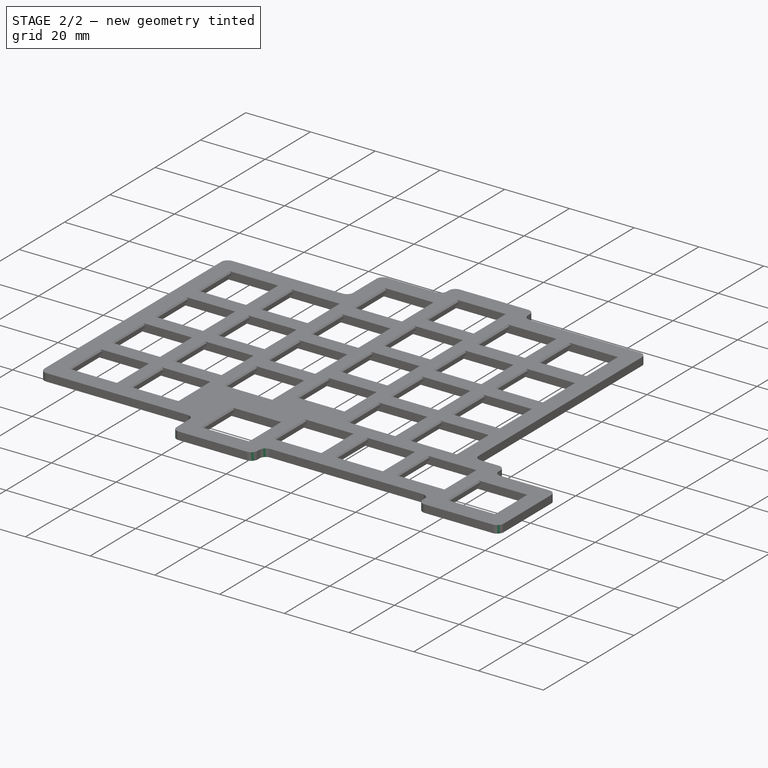
[diagram: stage 2 of 2 — iso view after this stage's code; geometry added in this stage tinted green]
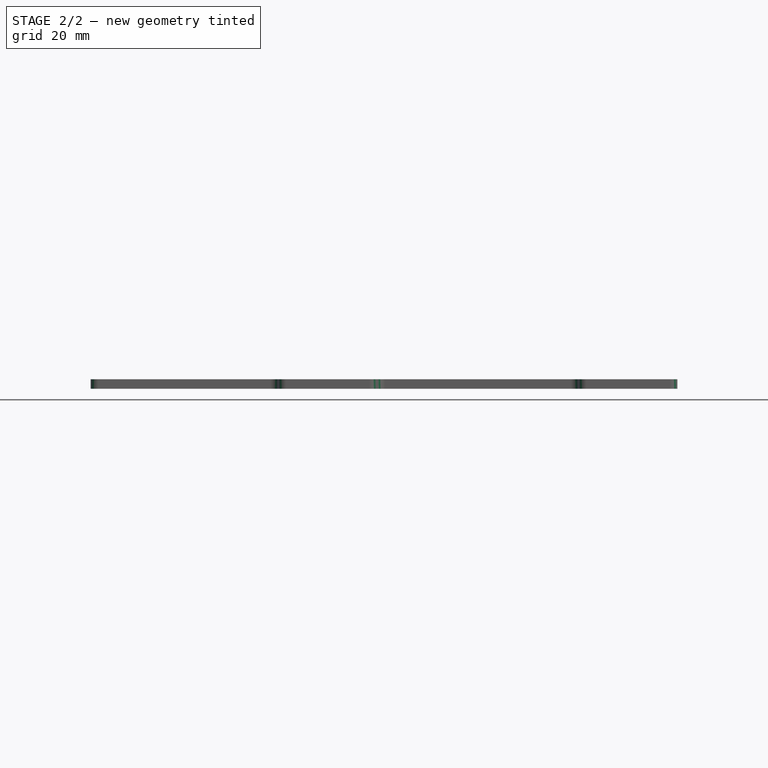
[diagram: stage 2 of 2 — front view after this stage's code; geometry added in this stage tinted green]
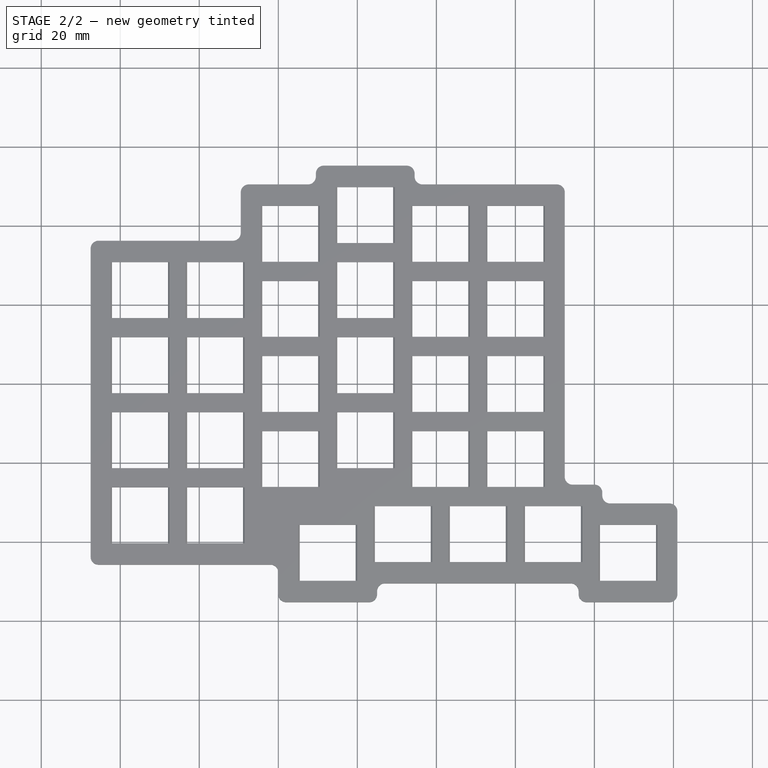
[diagram: stage 2 of 2 — top view after this stage's code; geometry added in this stage tinted green]
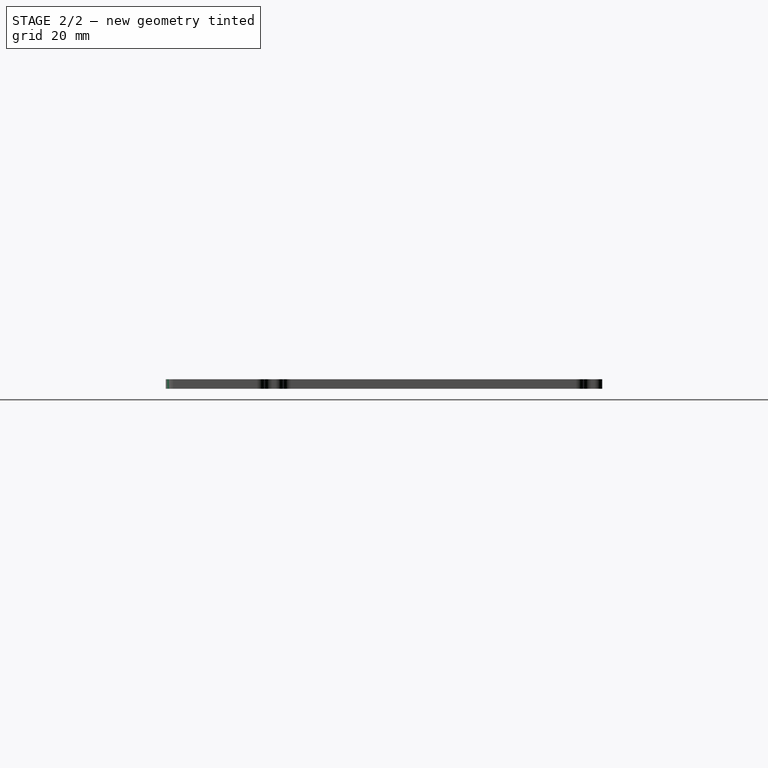
[diagram: stage 2 of 2 — right view after this stage's code; geometry added in this stage tinted green]
FEATURE [PartDesign::Fillet] Fillet
  Base = -> Pocket [Edge287,Edge289,Edge291,Edge292,Edge290,Edge288,Edge286,Edge284,Edge282,Edge280,Edge278,Edge8,Edge2,Edge1,Edge5,Edge277,Edge279,Edge281,Edge283,Edge285]
  BaseFeature = -> Pocket
  Radius = 2
  SupportTransform = false
  UseAllEdges = false
FEATURE [PartDesign::Chamfer] Chamfer
  Angle = 45
  Base = -> Fillet [Edge301,Edge205,Edge305,Edge309,Edge311,Edge307,Edge207,Edge303,Edge209,Edge213,Edge293,Edge313,Edge315,Edge295,Edge215,Edge211,Edge273,Edge277,Edge217,Edge201,Edge203,Edge219,Edge279,Edge275,Edge245,Edge247,Edge249,Edge251,Edge231,Edge229,Edge297,Edge299,Edge237,Edge281,Edge261,Edge233,Edge235,Edge263,Edge283,Edge239,+18 more]
  BaseFeature = -> Fillet
  ChamferType = 0
  FlipDirection = false
  Size = 0.4
  Size2 = 1
  SupportTransform = false
  UseAllEdges = false
FEATURE [PartDesign::Body] Body
  Group = -> [Sketch,Pad,Sketch001,Pocket,Fillet,Chamfer]
  Origin = -> Origin
  Tip = -> Chamfer
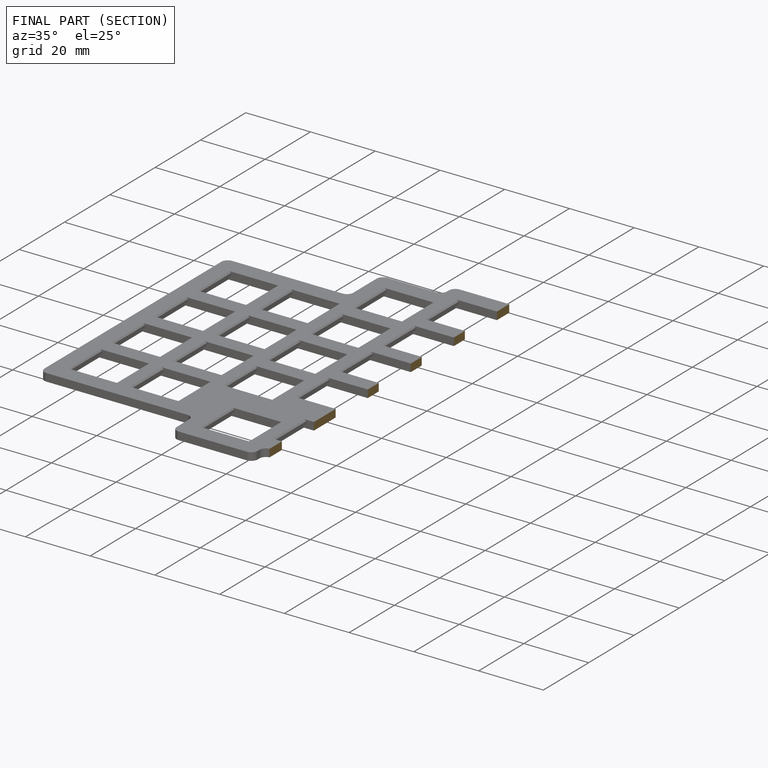
[diagram: finished part — half-section view (interior)]
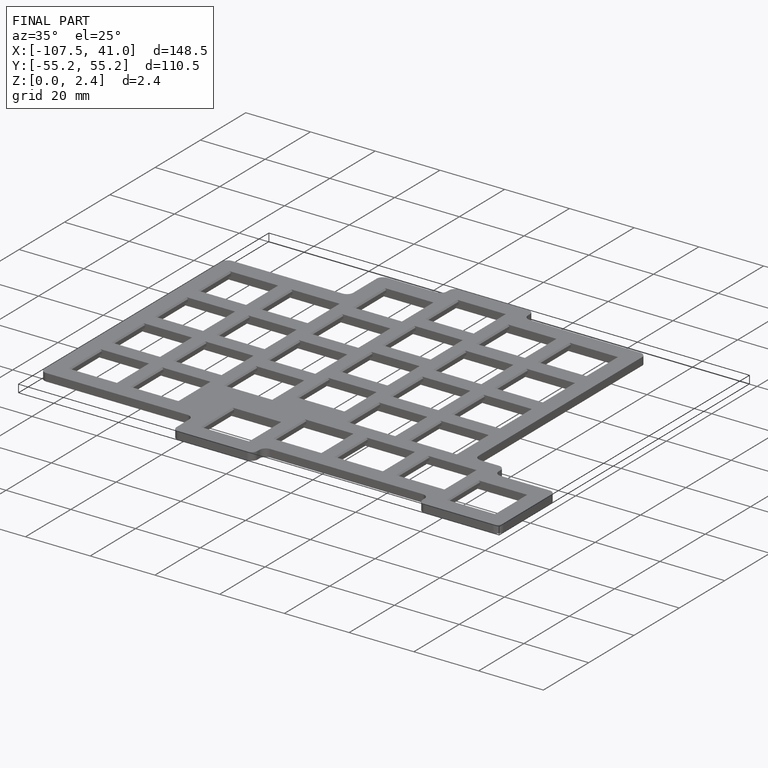
[diagram: finished part — iso view with bounding-box wireframe]
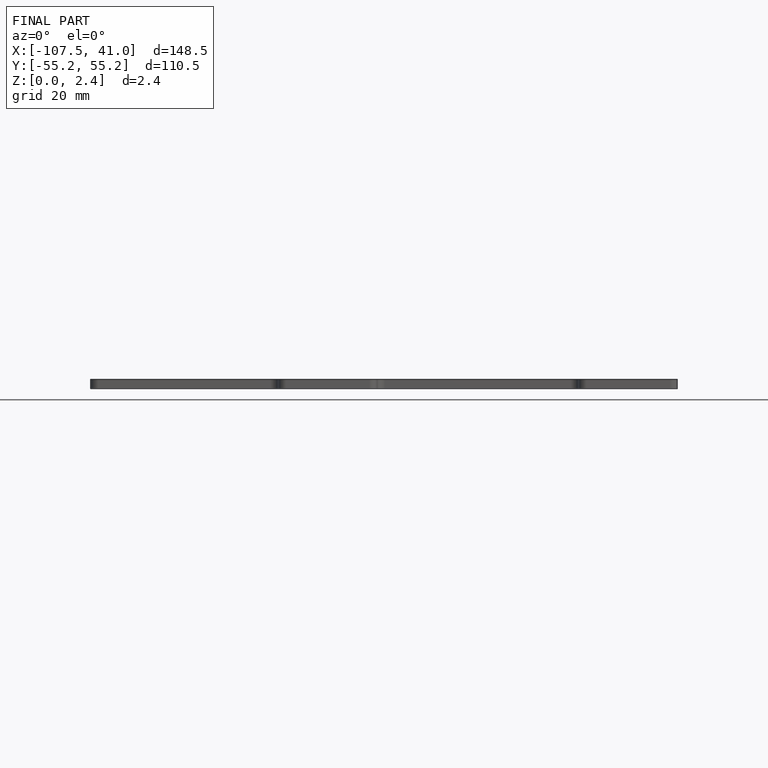
[diagram: finished part — front view with bounding-box wireframe]
